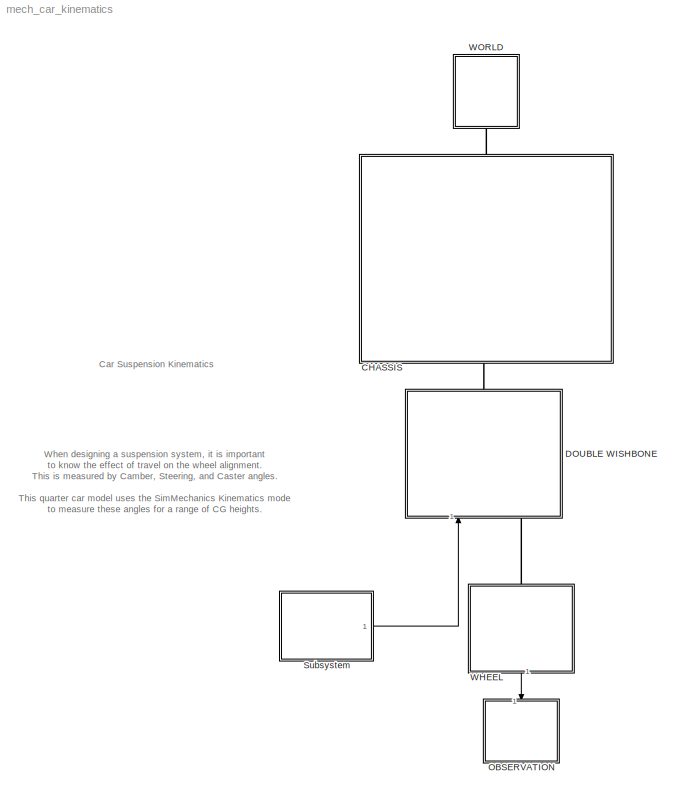
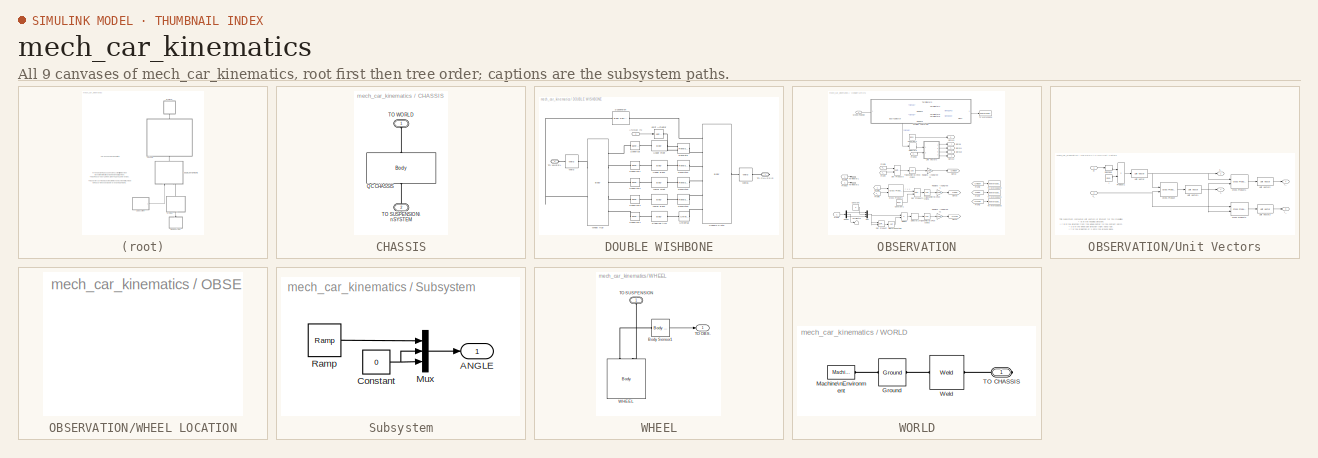
[diagram: thumbnail index - all 9 canvases of the model, root first then tree order]
MODEL mech_car_kinematics
KIND model
CONFIG InitFcn = set_param([gcs '/WORLD/Machine Environment'], 'AnalysisType', 'Kinematics');\n\n\n
CONFIG PreLoadFcn = % Initialize structures \nchassis = struct() ; \nwheelhub = struct() ; \nsuspension = struct() ; \nwheel = struct() ; \n\n% Defualt chassis/double wishbone mounting points \nchassis.mass = 600 ; \nchassis.upperfront = [0 0 0] ; \nchassis.upperback = [-0.4 0 0] ; \nchassis.lowerfront = [0 0 -0.5] ; \nchassis.lowerback = [-0.4 0 -0.45] ; \nchassis.steering = [0.12 0 -0.3] ; \nchassis.suspension = [0...<+453ch>
CONFIG StopFcn = % Script to plot the bump steer properties of a suspension system\n\nappDataName = 'mech_car_Kin_Steering_data';\nfigInfo.pos = [20   288   409   413];\nfigInfo.title = 'Steering angle versus CG height';\nfigInfo.xlabel = 'CG Height (m)';\nfigInfo.ylabel = 'Steering Angle (deg)';\nmech_car_handling_fig_mgr('init',appDataName,figInfo);\nmodelFigure = getappdata(0,appDataName);\nplot(-WHEEL.signals....<+851ch>
BLOCK [SubSystem] CHASSIS
  FunctionWithSeparateData = off
  MaskDisplay = image(imread('chassis.jpg'))
  MaskEnableString = on
  MaskHideContents = off
  MaskIconFrame = on
  MaskIconOpaque = on
  MaskIconRotate = none
  MaskIconUnits = autoscale
  MaskPromptString = Quarter Car Chassis Mass
  MaskStyleString = edit
  MaskToolTipString = on
  MaskTunableValueString = on
  MaskValueString = chassis.mass
  MaskVariables = chassis_mass=@1;
  MaskVisibilityString = on
  MinAlgLoopOccurrences = off
  Opaque = off
  Ports = [0, 0, 0, 0, 0, 1, 1]
  PropExecContextOutsideSubsystem = off
  RTWSystemCode = Auto
  RequestExecContextInheritance = off
BLOCK [Reference] CHASSIS/QC CHASSIS  REF=mblibv1/Bodies/Body
  AttachedToCS = 1
  BodyColor = [0.5 0.5 0.5]
  CG = Left$CG$[0 0 -0.5]$CS1$CS1$m$[0 0 0]$EULER X-Y-Z$deg$WORLD$false
  CGPos = [0 0 -0.5]
  CGRot = [0 0 0]
  CS0Pos = []
  CS0Rot = []
  CS10Pos = []
  CS10Rot = []
  CS11Pos = []
  CS11Rot = []
  CS12Pos = []
  CS12Rot = []
  CS13Pos = []
  CS13Rot = []
  CS14Pos = []
  CS14Rot = []
  CS15Pos = []
  CS15Rot = []
  CS16Pos = []
  CS16Rot = []
  CS17Pos = []
  CS17Rot = []
  CS18Pos = []
  CS18Rot = []
  CS19Pos = []
  CS19Rot = []
  CS1Pos = [0 0 0]
  CS1Rot = [0 0 0]
  CS20Pos = []
  CS20Rot = []
  CS2Pos = [0 0 -1]
  CS2Rot = [0 0 0]
  CS3Pos = []
  CS3Rot = []
  CS4Pos = []
  CS4Rot = []
  CS5Pos = []
  CS5Rot = []
  CS6Pos = []
  CS6Rot = []
  CS7Pos = []
  CS7Rot = []
  CS8Pos = []
  CS8Rot = []
  CS9Pos = []
  CS9Rot = []
  ClassName = Body
  Density = 1
  DensityUnits = kg/m^3
  DensityUse = false
  DialogClass = MechanicalBodyBlock
  DialogController = MECH.DynMechDlgSource
  GraphicsMode = 1
  GraphicsObj = []
  Inertia = diag([1 1 0.008])*10
  InertiaUnits = kg*m^2
  LConnTagsString = CS1
  LeftPortType = workingframe
  Mass = chassis_mass
  MassUnits = kg
  PhysicalDomain = mechanical
  Ports = [0, 0, 0, 0, 0, 1, 1]
  RConnTagsString = CS2
  RightPortType = workingframe
  Shape = Cylinder
  ShapeDims = [1 1]
  ShapeUnits = m
  ShapeUse = false
  SourceBlock = mblibv1/Bodies/Body
  SourceType = Body
  SubClassName = Unknown
  WorkingFrames = Left$CS1$[0 0 0]$ADJOINING$ADJOINING$m$[0 0 0]$EULER X-Y-Z$deg$WORLD$true#Right$CS2$[0 0 -1]$CS1$CS1$m$[0 0 0]$EULER X-Y-Z$deg$WORLD$true
BLOCK [PMIOPort] CHASSIS/TO SUSPENSION\nSYSTEM
  Port = 2
  Side = Right
BLOCK [PMIOPort] CHASSIS/TO WORLD
  Port = 1
  Side = Left
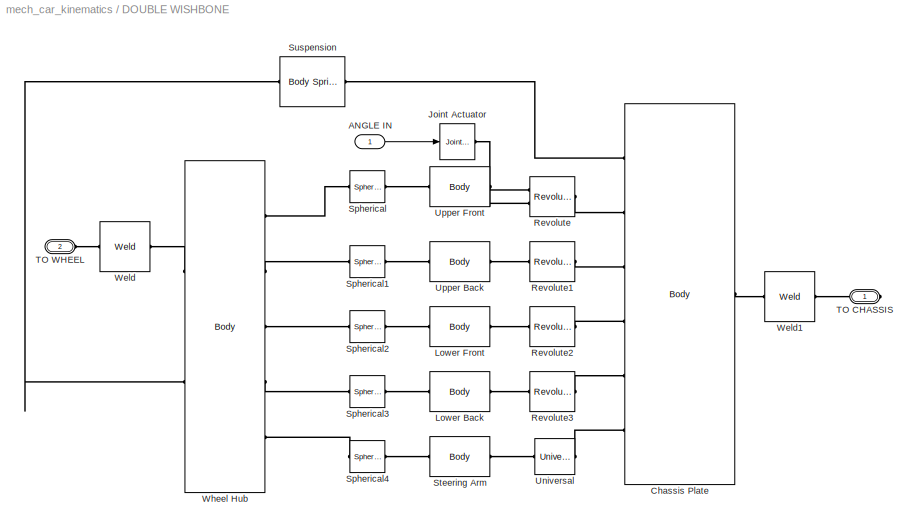
BLOCK [SubSystem] DOUBLE WISHBONE
  FunctionWithSeparateData = off
  MaskCallbackString = ||||||||||||
  MaskDisplay = image(imread('double_wishbone.jpg'))
  MaskEnableString = on,on,on,on,on,on,on,on,on,on,on,on,on
  MaskHideContents = off
  MaskIconFrame = on
  MaskIconOpaque = on
  MaskIconRotate = none
  MaskIconUnits = pixels
  MaskPromptString = Chassis Upper Front Mounting|Chassis Upper Back|Chassis Lower Front|Chassis Lower Back|Chassis Steering Arm|Chassis Suspension|Hub Upper|Hub Lower|Hub Steering Arm|Hub Suspension|Suspension Spring Stiffness|Suspension Spring Natural Length|Suspension Damping Constant
  MaskStyleString = edit,edit,edit,edit,edit,edit,edit,edit,edit,edit,edit,edit,edit
  MaskTabNameString = ,,,,,,,,,,,,
  MaskToolTipString = on,on,on,on,on,on,on,on,on,on,on,on,on
  MaskTunableValueString = on,on,on,on,on,on,on,on,on,on,on,on,on
  MaskValueString = chassis.upperfront|chassis.upperback|chassis.lowerfront|chassis.lowerback|chassis.steering|chassis.suspension|wheelhub.upper|wheelhub.lower|wheelhub.steering|wheelhub.suspension|suspension.ks|suspension.Ls|suspension.bs
  MaskVarAliasString = ,,,,,,,,,,,,
  MaskVariables = Chas_Up_Front=@1;Chas_Up_Back=@2;Chas_Low_Front=@3;Chas_Low_Back=@4;Chas_Steer=@5;Chas_Susp=@6;Hub_Up=@7;Hub_Low=@8;Hub_Steer=@9;Hub_Susp=@10;suspension_ks=@11;suspension_Ls=@12;suspension_bs=@13;
  MaskVisibilityString = on,on,on,on,on,on,on,on,on,on,on,on,on
  MinAlgLoopOccurrences = off
  Opaque = off
  Ports = [1, 0, 0, 0, 0, 1, 1]
  PropExecContextOutsideSubsystem = off
  RTWSystemCode = Auto
  RequestExecContextInheritance = off
BLOCK [Inport] DOUBLE WISHBONE/ANGLE IN
  IconDisplay = Port number
  OutDataType = sfix(16)
  OutScaling = 2^0
BLOCK [Reference] DOUBLE WISHBONE/Chassis Plate  REF=mblibv1/Bodies/Body
  AttachedToCS = 1
  BodyColor = [0.5 0.5 0.5]
  CG = Right$CG$[0 0 0]$CS4$CS4$m$[0 0 0]$EULER X-Y-Z$deg$WORLD$false
  CGPos = [0 0 0]
  CGRot = [0 0 0]
  CS0Pos = []
  CS0Rot = []
  CS10Pos = []
  CS10Rot = []
  CS11Pos = []
  CS11Rot = []
  CS12Pos = []
  CS12Rot = []
  CS13Pos = []
  CS13Rot = []
  CS14Pos = []
  CS14Rot = []
  CS15Pos = []
  CS15Rot = []
  CS16Pos = []
  CS16Rot = []
  CS17Pos = []
  CS17Rot = []
  CS18Pos = []
  CS18Rot = []
  CS19Pos = []
  CS19Rot = []
  CS1Pos = Chas_Susp
  CS1Rot = [0 0 0]
  CS20Pos = []
  CS20Rot = []
  CS2Pos = Chas_Up_Back
  CS2Rot = [0 0 0]
  CS3Pos = Chas_Up_Front
  CS3Rot = [0 0 0]
  CS4Pos = [0 0 0]
  CS4Rot = [0 0 0]
  CS5Pos = Chas_Low_Front
  CS5Rot = [0 0 0]
  CS6Pos = Chas_Low_Back
  CS6Rot = [0 0 0]
  CS7Pos = Chas_Steer
  CS7Rot = [0 0 0]
  CS8Pos = []
  CS8Rot = []
  CS9Pos = []
  CS9Rot = []
  ClassName = Body
  Density = 1
  DensityUnits = kg/m^3
  DensityUse = false
  DialogClass = MechanicalBodyBlock
  DialogController = MECH.DynMechDlgSource
  GraphicsMode = 1
  GraphicsObj = []
  Inertia = [0.5005 0 0;0 1 0;0 0 0.5005]/100
  InertiaUnits = kg*m^2
  LConnTagsString = CS1|CS3|CS2|CS5|CS6|CS7
  LeftPortType = workingframe
  Mass = 0.1
  MassUnits = kg
  PhysicalDomain = mechanical
  Ports = [0, 0, 0, 0, 0, 6, 1]
  RConnTagsString = CS4
  RightPortType = workingframe
  Shape = Cylinder
  ShapeDims = [1 1]
  ShapeUnits = m
  ShapeUse = false
  SourceBlock = mblibv1/Bodies/Body
  SourceType = Body
  SubClassName = Unknown
  WorkingFrames = Right$CS4$[0 0 0]$ADJOINING$ADJOINING$m$[0 0 0]$EULER X-Y-Z$deg$WORLD$true#Left$CS1$Chas_Susp$CS4$CS4$m$[0 0 0]$EULER X-Y-Z$deg$WORLD$true#Left$CS3$Chas_Up_Front$CS4$CS4$m$[0 0 0]$EULER X-Y-Z$deg$WORLD$true#Left$CS2$Chas_Up_Back$CS4$CS4$m$[0 0 0]$EULER X-Y-Z$deg$WORLD$true#Left$CS5$Chas_Low_Front$CS4$CS4$m$[0 0 0]$EULER X-Y-Z$deg$WORLD$true#Left$CS6$Chas_Low_Back$CS4$CS4$m$[0 0 0]$EULER X-Y-Z$deg$...<+75ch>
BLOCK [Reference] DOUBLE WISHBONE/Joint Actuator  REF=mblibv1/Sensors & \nActuators/Joint Actuator
  AccelerationUnits = m/s^2
  ActiveIO = on
  ActuationStyle = Motion
  AngleUnits = rad
  ArcAccelerationUnits = rad/s^2
  ArcVelocityUnits = rad/s
  ClassName = JointActuator
  CoordPositionUnits = m
  DialogClass = MechanicalActuatorBlock
  DialogController = MECH.DynMechDlgSource
  ForceUnits = N
  FunctionWithSeparateData = off
  PhysicalDomain = Mechanical
  PortType = blob
  Ports = [1, 0, 0, 0, 0, 0, 1]
  Primitive = R1
  RTWMemSecDataConstants = Inherit from model
  RTWMemSecDataInternal = Inherit from model
  RTWMemSecDataParameters = Inherit from model
  RTWMemSecFuncExecute = Inherit from model
  RTWMemSecFuncInitTerm = Inherit from model
  ReferenceFrame = Absolute (INERTIAL)
  ShowPortLabels = FromPortIcon
  SourceBlock = mblibv1/Sensors & \nActuators/Joint Actuator
  SourceType = Joint Actuator
  SystemSampleTime = -1
  TorqueUnits = N-m
  VelocityUnits = m/s
  Width = 3
BLOCK [Reference] DOUBLE WISHBONE/Lower Back  REF=mblibv1/Bodies/Body
  AttachedToCS = 1
  BodyColor = [0.5 0.5 0.5]
  CG = Left$CG$0.5*(Hub_Low - Chas_Low_Back)$CS2$CS2$m$[0 0 -110]$EULER X-Y-Z$deg$WORLD$false
  CGPos = 0.5*(Hub_Low - Chas_Low_Back)
  CGRot = [0 0 -110]
  CS0Pos = []
  CS0Rot = []
  CS10Pos = []
  CS10Rot = []
  CS11Pos = []
  CS11Rot = []
  CS12Pos = []
  CS12Rot = []
  CS13Pos = []
  CS13Rot = []
  CS14Pos = []
  CS14Rot = []
  CS15Pos = []
  CS15Rot = []
  CS16Pos = []
  CS16Rot = []
  CS17Pos = []
  CS17Rot = []
  CS18Pos = []
  CS18Rot = []
  CS19Pos = []
  CS19Rot = []
  CS1Pos = Hub_Low - Chas_Low_Back
  CS1Rot = [0 0 0]
  CS20Pos = []
  CS20Rot = []
  CS2Pos = [0 0 0]
  CS2Rot = [0 0 0]
  CS3Pos = []
  CS3Rot = []
  CS4Pos = []
  CS4Rot = []
  CS5Pos = []
  CS5Rot = []
  CS6Pos = []
  CS6Rot = []
  CS7Pos = []
  CS7Rot = []
  CS8Pos = []
  CS8Rot = []
  CS9Pos = []
  CS9Rot = []
  ClassName = Body
  Density = 1
  DensityUnits = kg/m^3
  DensityUse = false
  DialogClass = MechanicalBodyBlock
  DialogController = MECH.DynMechDlgSource
  GraphicsMode = 1
  GraphicsObj = []
  Inertia = diag([0.008 1 1])/7.8
  InertiaUnits = kg*m^2
  LConnTagsString = CS1
  LeftPortType = workingframe
  Mass = 7
  MassUnits = kg
  PhysicalDomain = mechanical
  Ports = [0, 0, 0, 0, 0, 1, 1]
  RConnTagsString = CS2
  RightPortType = workingframe
  Shape = Cylinder
  ShapeDims = [1 1]
  ShapeUnits = m
  ShapeUse = false
  SourceBlock = mblibv1/Bodies/Body
  SourceType = Body
  SubClassName = Unknown
  WorkingFrames = Left$CS1$Hub_Low - Chas_Low_Back$CS2$CS2$m$[0 0 0]$EULER X-Y-Z$deg$WORLD$true#Right$CS2$[0 0 0]$ADJOINING$ADJOINING$m$[0 0 0]$EULER X-Y-Z$deg$WORLD$true
BLOCK [Reference] DOUBLE WISHBONE/Lower Front  REF=mblibv1/Bodies/Body
  AttachedToCS = 1
  BodyColor = [0.5 0.5 0.5]
  CG = Left$CG$0.5*(Hub_Low - Chas_Low_Front)$CS2$CS2$m$[0 0 -70]$EULER X-Y-Z$deg$WORLD$false
  CGPos = 0.5*(Hub_Low - Chas_Low_Front)
  CGRot = [0 0 -70]
  CS0Pos = []
  CS0Rot = []
  CS10Pos = []
  CS10Rot = []
  CS11Pos = []
  CS11Rot = []
  CS12Pos = []
  CS12Rot = []
  CS13Pos = []
  CS13Rot = []
  CS14Pos = []
  CS14Rot = []
  CS15Pos = []
  CS15Rot = []
  CS16Pos = []
  CS16Rot = []
  CS17Pos = []
  CS17Rot = []
  CS18Pos = []
  CS18Rot = []
  CS19Pos = []
  CS19Rot = []
  CS1Pos = Hub_Low - Chas_Low_Front
  CS1Rot = [0 0 0]
  CS20Pos = []
  CS20Rot = []
  CS2Pos = [0 0 0]
  CS2Rot = [0 0 0]
  CS3Pos = []
  CS3Rot = []
  CS4Pos = []
  CS4Rot = []
  CS5Pos = []
  CS5Rot = []
  CS6Pos = []
  CS6Rot = []
  CS7Pos = []
  CS7Rot = []
  CS8Pos = []
  CS8Rot = []
  CS9Pos = []
  CS9Rot = []
  ClassName = Body
  Density = 1
  DensityUnits = kg/m^3
  DensityUse = false
  DialogClass = MechanicalBodyBlock
  DialogController = MECH.DynMechDlgSource
  GraphicsMode = 1
  GraphicsObj = []
  Inertia = diag([0.008 1 1])/7.8
  InertiaUnits = kg*m^2
  LConnTagsString = CS1
  LeftPortType = workingframe
  Mass = 7
  MassUnits = kg
  PhysicalDomain = mechanical
  Ports = [0, 0, 0, 0, 0, 1, 1]
  RConnTagsString = CS2
  RightPortType = workingframe
  Shape = Cylinder
  ShapeDims = [1 1]
  ShapeUnits = m
  ShapeUse = false
  SourceBlock = mblibv1/Bodies/Body
  SourceType = Body
  SubClassName = Unknown
  WorkingFrames = Left$CS1$Hub_Low - Chas_Low_Front$CS2$CS2$m$[0 0 0]$EULER X-Y-Z$deg$WORLD$true#Right$CS2$[0 0 0]$ADJOINING$ADJOINING$m$[0 0 0]$EULER X-Y-Z$deg$WORLD$true
BLOCK [Reference] DOUBLE WISHBONE/Revolute  REF=mblibv1/Joints/Revolute
  ClassName = Joint
  CutJoint = off
  DialogClass = JointBlock
  DialogController = MECH.DynMechDlgSource
  LConnTagsString = __newl0|SA1
  LeftPortType = blob
  MarkAsCut = off
  NumSAPorts = 1
  PhysicalDomain = mechanical
  Ports = [0, 0, 0, 0, 0, 2, 1]
  PrimitiveProps = R1$WORLD$Chas_Up_Front - Chas_Up_Back$revolute
  Primitives = revolute
  R1Axis = Chas_Up_Front - Chas_Up_Back
  RConnTagsString = __newr0
  RightPortType = blob
  SourceBlock = mblibv1/Joints/Revolute
  SourceType = Revolute
  SubClassName = Unknown
BLOCK [Reference] DOUBLE WISHBONE/Revolute1  REF=mblibv1/Joints/Revolute
  ClassName = Joint
  CutJoint = on
  DialogClass = JointBlock
  DialogController = MECH.DynMechDlgSource
  LConnTagsString = __newl0
  LeftPortType = blob
  MarkAsCut = off
  NumSAPorts = 0
  PhysicalDomain = mechanical
  Ports = [0, 0, 0, 0, 0, 1, 1]
  PrimitiveProps = R1$WORLD$Chas_Up_Front - Chas_Up_Back$revolute
  Primitives = revolute
  R1Axis = Chas_Up_Front - Chas_Up_Back
  RConnTagsString = __newr0
  RightPortType = blob
  SourceBlock = mblibv1/Joints/Revolute
  SourceType = Revolute
  SubClassName = Unknown
BLOCK [Reference] DOUBLE WISHBONE/Revolute2  REF=mblibv1/Joints/Revolute
  ClassName = Joint
  CutJoint = off
  DialogClass = JointBlock
  DialogController = MECH.DynMechDlgSource
  LConnTagsString = __newl0
  LeftPortType = blob
  MarkAsCut = off
  NumSAPorts = 0
  PhysicalDomain = mechanical
  Ports = [0, 0, 0, 0, 0, 1, 1]
  PrimitiveProps = R1$WORLD$Chas_Low_Front-Chas_Low_Back$revolute
  Primitives = revolute
  R1Axis = Chas_Low_Front-Chas_Low_Back
  RConnTagsString = __newr0
  RightPortType = blob
  SourceBlock = mblibv1/Joints/Revolute
  SourceType = Revolute
  SubClassName = Unknown
BLOCK [Reference] DOUBLE WISHBONE/Revolute3  REF=mblibv1/Joints/Revolute
  ClassName = Joint
  CutJoint = off
  DialogClass = JointBlock
  DialogController = MECH.DynMechDlgSource
  LConnTagsString = __newl0
  LeftPortType = blob
  MarkAsCut = off
  NumSAPorts = 0
  PhysicalDomain = mechanical
  Ports = [0, 0, 0, 0, 0, 1, 1]
  PrimitiveProps = R1$WORLD$Chas_Low_Front - Chas_Low_Back$revolute
  Primitives = revolute
  R1Axis = Chas_Low_Front - Chas_Low_Back
  RConnTagsString = __newr0
  RightPortType = blob
  SourceBlock = mblibv1/Joints/Revolute
  SourceType = Revolute
  SubClassName = Unknown
BLOCK [Reference] DOUBLE WISHBONE/Spherical  REF=mblibv1/Joints/Spherical
  ClassName = Joint
  CutJoint = off
  DialogClass = JointBlock
  DialogController = MECH.DynMechDlgSource
  LConnTagsString = __newl0
  LeftPortType = blob
  MarkAsCut = off
  NumSAPorts = 0
  PhysicalDomain = mechanical
  Ports = [0, 0, 0, 0, 0, 1, 1]
  PrimitiveProps = S$INERTIAL$[0 0 0]$spherical
  Primitives = spherical
  RConnTagsString = __newr0
  RightPortType = blob
  SAxis = [0 0 0]
  SourceBlock = mblibv1/Joints/Spherical
  SourceType = Spherical
  SubClassName = Unknown
BLOCK [Reference] DOUBLE WISHBONE/Spherical1  REF=mblibv1/Joints/Spherical
  ClassName = Joint
  CutJoint = off
  DialogClass = JointBlock
  DialogController = MECH.DynMechDlgSource
  LConnTagsString = __newl0
  LeftPortType = blob
  MarkAsCut = off
  NumSAPorts = 0
  PhysicalDomain = mechanical
  Ports = [0, 0, 0, 0, 0, 1, 1]
  PrimitiveProps = S$WORLD$[0 0 0]$spherical
  Primitives = spherical
  RConnTagsString = __newr0
  RightPortType = blob
  SAxis = [0 0 0]
  SourceBlock = mblibv1/Joints/Spherical
  SourceType = Spherical
  SubClassName = Unknown
BLOCK [Reference] DOUBLE WISHBONE/Spherical2  REF=mblibv1/Joints/Spherical
  ClassName = Joint
  CutJoint = off
  DialogClass = JointBlock
  DialogController = MECH.DynMechDlgSource
  LConnTagsString = __newl0
  LeftPortType = blob
  MarkAsCut = off
  NumSAPorts = 0
  PhysicalDomain = mechanical
  Ports = [0, 0, 0, 0, 0, 1, 1]
  PrimitiveProps = S$WORLD$[0 0 0]$spherical
  Primitives = spherical
  RConnTagsString = __newr0
  RightPortType = blob
  SAxis = [0 0 0]
  SourceBlock = mblibv1/Joints/Spherical
  SourceType = Spherical
  SubClassName = Unknown
BLOCK [Reference] DOUBLE WISHBONE/Spherical3  REF=mblibv1/Joints/Spherical
  ClassName = Joint
  CutJoint = on
  DialogClass = JointBlock
  DialogController = MECH.DynMechDlgSource
  LConnTagsString = __newl0
  LeftPortType = blob
  MarkAsCut = off
  NumSAPorts = 0
  PhysicalDomain = mechanical
  Ports = [0, 0, 0, 0, 0, 1, 1]
  PrimitiveProps = S$WORLD$[0 0 0]$spherical
  Primitives = spherical
  RConnTagsString = __newr0
  RightPortType = blob
  SAxis = [0 0 0]
  SourceBlock = mblibv1/Joints/Spherical
  SourceType = Spherical
  SubClassName = Unknown
BLOCK [Reference] DOUBLE WISHBONE/Spherical4  REF=mblibv1/Joints/Spherical
  ClassName = Joint
  CutJoint = off
  DialogClass = JointBlock
  DialogController = MECH.DynMechDlgSource
  LConnTagsString = __newl0
  LeftPortType = blob
  MarkAsCut = off
  NumSAPorts = 0
  PhysicalDomain = mechanical
  Ports = [0, 0, 0, 0, 0, 1, 1]
  PrimitiveProps = S$INERTIAL$[0 0 0]$spherical
  Primitives = spherical
  RConnTagsString = __newr0
  RightPortType = blob
  SAxis = [0 0 0]
  SourceBlock = mblibv1/Joints/Spherical
  SourceType = Spherical
  SubClassName = Unknown
BLOCK [Reference] DOUBLE WISHBONE/Steering Arm  REF=mblibv1/Bodies/Body
  AttachedToCS = 1
  BodyColor = [0.5 0.5 0.5]
  CG = Left$CG$0.5*(Hub_Steer - Chas_Steer)$CS2$CS2$m$[0 0 -82]$EULER X-Y-Z$deg$WORLD$false
  CGPos = 0.5*(Hub_Steer - Chas_Steer)
  CGRot = [0 0 -82]
  CS0Pos = []
  CS0Rot = []
  CS10Pos = []
  CS10Rot = []
  CS11Pos = []
  CS11Rot = []
  CS12Pos = []
  CS12Rot = []
  CS13Pos = []
  CS13Rot = []
  CS14Pos = []
  CS14Rot = []
  CS15Pos = []
  CS15Rot = []
  CS16Pos = []
  CS16Rot = []
  CS17Pos = []
  CS17Rot = []
  CS18Pos = []
  CS18Rot = []
  CS19Pos = []
  CS19Rot = []
  CS1Pos = Hub_Steer - Chas_Steer
  CS1Rot = [0 0 0]
  CS20Pos = []
  CS20Rot = []
  CS2Pos = [0 0 0]
  CS2Rot = [0 0 0]
  CS3Pos = []
  CS3Rot = []
  CS4Pos = []
  CS4Rot = []
  CS5Pos = []
  CS5Rot = []
  CS6Pos = []
  CS6Rot = []
  CS7Pos = []
  CS7Rot = []
  CS8Pos = []
  CS8Rot = []
  CS9Pos = []
  CS9Rot = []
  ClassName = Body
  Density = 1
  DensityUnits = kg/m^3
  DensityUse = false
  DialogClass = MechanicalBodyBlock
  DialogController = MECH.DynMechDlgSource
  GraphicsMode = 1
  GraphicsObj = []
  Inertia = diag([0.008 1 1])/10
  InertiaUnits = kg*m^2
  LConnTagsString = CS1
  LeftPortType = workingframe
  Mass = 7
  MassUnits = kg
  PhysicalDomain = mechanical
  Ports = [0, 0, 0, 0, 0, 1, 1]
  RConnTagsString = CS2
  RightPortType = workingframe
  Shape = Cylinder
  ShapeDims = [1 1]
  ShapeUnits = m
  ShapeUse = false
  SourceBlock = mblibv1/Bodies/Body
  SourceType = Body
  SubClassName = Unknown
  WorkingFrames = Left$CS1$Hub_Steer - Chas_Steer$CS2$CS2$m$[0 0 0]$EULER X-Y-Z$deg$WORLD$true#Right$CS2$[0 0 0]$ADJOINING$ADJOINING$m$[0 0 0]$EULER X-Y-Z$deg$WORLD$true
BLOCK [Reference] DOUBLE WISHBONE/Suspension  REF=mblibv1/Force \nElements/Body Spring & Damper
  ClassName = BodyForceElement
  Damper_b = suspension_bs
  DialogClass = BodySpringDamper
  DialogController = MECH.DynMechDlgSource
  ForceUnits = N
  FunctionWithSeparateData = off
  Offset_x0 = suspension_Ls
  Ports = [0, 0, 0, 0, 0, 1, 1]
  PositionUnits = m
  RTWMemSecDataConstants = Inherit from model
  RTWMemSecDataInternal = Inherit from model
  RTWMemSecDataParameters = Inherit from model
  RTWMemSecFuncExecute = Inherit from model
  RTWMemSecFuncInitTerm = Inherit from model
  ShowPortLabels = FromPortIcon
  SourceBlock = mblibv1/Force \nElements/Body Spring & Damper
  SourceType = Body Spring & Damper
  Spring_k = suspension_ks
  SystemSampleTime = -1
  VelocityUnits = m/s
BLOCK [PMIOPort] DOUBLE WISHBONE/TO CHASSIS
  Port = 1
  Side = Right
BLOCK [PMIOPort] DOUBLE WISHBONE/TO WHEEL
  Port = 2
  Side = Left
BLOCK [Reference] DOUBLE WISHBONE/Universal  REF=mblibv1/Joints/Universal
  ClassName = Joint
  CutJoint = off
  DialogClass = JointBlock
  DialogController = MECH.DynMechDlgSource
  LConnTagsString = __newl0
  LeftPortType = blob
  MarkAsCut = off
  NumSAPorts = 0
  PhysicalDomain = mechanical
  Ports = [0, 0, 0, 0, 0, 1, 1]
  PrimitiveProps = R1$WORLD$[1 0 0]$revolute#R2$WORLD$[0 0 1]$revolute
  Primitives = revolute_revolute
  R1Axis = [1 0 0]
  R2Axis = [0 0 1]
  RConnTagsString = __newr0
  RightPortType = blob
  SourceBlock = mblibv1/Joints/Universal
  SourceType = Universal
  SubClassName = Unknown
BLOCK [Reference] DOUBLE WISHBONE/Upper Back  REF=mblibv1/Bodies/Body
  AttachedToCS = 1
  BodyColor = [0.5 0.5 0.5]
  CG = Left$CG$0.5*(Hub_Up - Chas_Up_Back)$CS2$CS2$m$[0 0 -110]$EULER X-Y-Z$deg$WORLD$false
  CGPos = 0.5*(Hub_Up - Chas_Up_Back)
  CGRot = [0 0 -110]
  CS0Pos = []
  CS0Rot = []
  CS10Pos = []
  CS10Rot = []
  CS11Pos = []
  CS11Rot = []
  CS12Pos = []
  CS12Rot = []
  CS13Pos = []
  CS13Rot = []
  CS14Pos = []
  CS14Rot = []
  CS15Pos = []
  CS15Rot = []
  CS16Pos = []
  CS16Rot = []
  CS17Pos = []
  CS17Rot = []
  CS18Pos = []
  CS18Rot = []
  CS19Pos = []
  CS19Rot = []
  CS1Pos = (Hub_Up - Chas_Up_Back)
  CS1Rot = [0 0 0]
  CS20Pos = []
  CS20Rot = []
  CS2Pos = [0 0 0]
  CS2Rot = [0 0 0]
  CS3Pos = []
  CS3Rot = []
  CS4Pos = []
  CS4Rot = []
  CS5Pos = []
  CS5Rot = []
  CS6Pos = []
  CS6Rot = []
  CS7Pos = []
  CS7Rot = []
  CS8Pos = []
  CS8Rot = []
  CS9Pos = []
  CS9Rot = []
  ClassName = Body
  Density = 1
  DensityUnits = kg/m^3
  DensityUse = false
  DialogClass = MechanicalBodyBlock
  DialogController = MECH.DynMechDlgSource
  GraphicsMode = 1
  GraphicsObj = []
  Inertia = diag([0.008 1 1])/7.8
  InertiaUnits = kg*m^2
  LConnTagsString = CS1
  LeftPortType = workingframe
  Mass = 7
  MassUnits = kg
  PhysicalDomain = mechanical
  Ports = [0, 0, 0, 0, 0, 1, 1]
  RConnTagsString = CS2
  RightPortType = workingframe
  Shape = Cylinder
  ShapeDims = [1 1]
  ShapeUnits = m
  ShapeUse = false
  SourceBlock = mblibv1/Bodies/Body
  SourceType = Body
  SubClassName = Unknown
  WorkingFrames = Left$CS1$(Hub_Up - Chas_Up_Back)$CS2$CS2$m$[0 0 0]$EULER X-Y-Z$deg$WORLD$true#Right$CS2$[0 0 0]$ADJOINING$ADJOINING$m$[0 0 0]$EULER X-Y-Z$deg$WORLD$true
BLOCK [Reference] DOUBLE WISHBONE/Upper Front  REF=mblibv1/Bodies/Body
  AttachedToCS = 1
  BodyColor = [0.5 0.5 0.5]
  CG = Left$CG$[-0.1 0.25 0]$CS2$CS2$m$[0 0 -70]$EULER X-Y-Z$deg$WORLD$false
  CGPos = [-0.1 0.25 0]
  CGRot = [0 0 -70]
  CS0Pos = []
  CS0Rot = []
  CS10Pos = []
  CS10Rot = []
  CS11Pos = []
  CS11Rot = []
  CS12Pos = []
  CS12Rot = []
  CS13Pos = []
  CS13Rot = []
  CS14Pos = []
  CS14Rot = []
  CS15Pos = []
  CS15Rot = []
  CS16Pos = []
  CS16Rot = []
  CS17Pos = []
  CS17Rot = []
  CS18Pos = []
  CS18Rot = []
  CS19Pos = []
  CS19Rot = []
  CS1Pos = Hub_Up - Chas_Up_Front
  CS1Rot = [0 0 0]
  CS20Pos = []
  CS20Rot = []
  CS2Pos = [0 0 0]
  CS2Rot = [0 0 0]
  CS3Pos = []
  CS3Rot = []
  CS4Pos = []
  CS4Rot = []
  CS5Pos = []
  CS5Rot = []
  CS6Pos = []
  CS6Rot = []
  CS7Pos = []
  CS7Rot = []
  CS8Pos = []
  CS8Rot = []
  CS9Pos = []
  CS9Rot = []
  ClassName = Body
  Density = 1
  DensityUnits = kg/m^3
  DensityUse = false
  DialogClass = MechanicalBodyBlock
  DialogController = MECH.DynMechDlgSource
  GraphicsMode = 1
  GraphicsObj = []
  Inertia = diag([0.008 1 1])/7.8
  InertiaUnits = kg*m^2
  LConnTagsString = CS1
  LeftPortType = workingframe
  Mass = 7
  MassUnits = kg
  PhysicalDomain = mechanical
  Ports = [0, 0, 0, 0, 0, 1, 1]
  RConnTagsString = CS2
  RightPortType = workingframe
  Shape = Cylinder
  ShapeDims = [1 1]
  ShapeUnits = m
  ShapeUse = false
  SourceBlock = mblibv1/Bodies/Body
  SourceType = Body
  SubClassName = Unknown
  WorkingFrames = Left$CS1$Hub_Up - Chas_Up_Front$CS2$CS2$m$[0 0 0]$EULER X-Y-Z$deg$WORLD$true#Right$CS2$[0 0 0]$ADJOINING$ADJOINING$m$[0 0 0]$EULER X-Y-Z$deg$WORLD$true
BLOCK [Reference] DOUBLE WISHBONE/Weld  REF=mblibv1/Joints/Weld
  ClassName = Joint
  CutJoint = off
  DialogClass = JointBlock
  DialogController = MECH.DynMechDlgSource
  LConnTagsString = __newl0
  LeftPortType = blob
  MarkAsCut = off
  NumSAPorts = 0
  PhysicalDomain = mechanical
  Ports = [0, 0, 0, 0, 0, 1, 1]
  PrimitiveProps = W$INERTIAL$[0 0 0]$weld
  Primitives = weld
  RConnTagsString = __newr0
  RightPortType = blob
  SourceBlock = mblibv1/Joints/Weld
  SourceType = Weld
  SubClassName = Unknown
  WAxis = [0 0 0]
BLOCK [Reference] DOUBLE WISHBONE/Weld1  REF=mblibv1/Joints/Weld
  ClassName = Joint
  CutJoint = off
  DialogClass = JointBlock
  DialogController = MECH.DynMechDlgSource
  LConnTagsString = __newl0
  LeftPortType = blob
  MarkAsCut = off
  NumSAPorts = 0
  PhysicalDomain = mechanical
  Ports = [0, 0, 0, 0, 0, 1, 1]
  PrimitiveProps = W$INERTIAL$[0 0 0]$weld
  Primitives = weld
  RConnTagsString = __newr0
  RightPortType = blob
  SourceBlock = mblibv1/Joints/Weld
  SourceType = Weld
  SubClassName = Unknown
  WAxis = [0 0 0]
BLOCK [Reference] DOUBLE WISHBONE/Wheel Hub  REF=mblibv1/Bodies/Body
  AttachedToCS = 1
  BodyColor = [0.5 0.5 0.5]
  CG = Left$CG$[0 0.03 -0.2]$CS3$CS3$m$[0 0 0]$EULER X-Y-Z$deg$WORLD$false
  CGPos = [0 0.03 -0.2]
  CGRot = [0 0 0]
  CS0Pos = []
  CS0Rot = []
  CS10Pos = []
  CS10Rot = []
  CS11Pos = []
  CS11Rot = []
  CS12Pos = []
  CS12Rot = []
  CS13Pos = []
  CS13Rot = []
  CS14Pos = []
  CS14Rot = []
  CS15Pos = []
  CS15Rot = []
  CS16Pos = []
  CS16Rot = []
  CS17Pos = []
  CS17Rot = []
  CS18Pos = []
  CS18Rot = []
  CS19Pos = []
  CS19Rot = []
  CS1Pos = [0 0.1 -0.2]
  CS1Rot = [0 0 0]
  CS20Pos = []
  CS20Rot = []
  CS2Pos = Hub_Susp - [0 0 1]
  CS2Rot = [0 0 0]
  CS3Pos = Hub_Up - [0 0 1]
  CS3Rot = [0 0 0]
  CS4Pos = Hub_Low - [0 0 1]
  CS4Rot = [0 0 0]
  CS5Pos = Hub_Low - [0 0 1]
  CS5Rot = [0 0 0]
  CS6Pos = Hub_Up - [0 0 1]
  CS6Rot = [0 0 0]
  CS7Pos = Hub_Steer - [0 0 1]
  CS7Rot = [0 0 0]
  CS8Pos = []
  CS8Rot = []
  CS9Pos = []
  CS9Rot = []
  ClassName = Body
  Density = 1
  DensityUnits = kg/m^3
  DensityUse = false
  DialogClass = MechanicalBodyBlock
  DialogController = MECH.DynMechDlgSource
  GraphicsMode = 1
  GraphicsObj = []
  Inertia = [0.55 0 0;0 1 0;0 0 0.55]/12
  InertiaUnits = kg*m^2
  LConnTagsString = CS1|CS2
  LeftPortType = workingframe
  Mass = 5
  MassUnits = kg
  PhysicalDomain = mechanical
  Ports = [0, 0, 0, 0, 0, 2, 5]
  RConnTagsString = CS3|CS6|CS4|CS5|CS7
  RightPortType = workingframe
  Shape = Cylinder
  ShapeDims = [1 1]
  ShapeUnits = m
  ShapeUse = false
  SourceBlock = mblibv1/Bodies/Body
  SourceType = Body
  SubClassName = Unknown
  WorkingFrames = Left$CS1$[0 0.1 -0.2]$CS3$CS3$m$[0 0 0]$EULER X-Y-Z$deg$WORLD$true#Right$CS3$Hub_Up - [0 0 1]$WORLD$WORLD$m$[0 0 0]$EULER X-Y-Z$deg$WORLD$true#Right$CS6$Hub_Up - [0 0 1]$WORLD$WORLD$m$[0 0 0]$EULER X-Y-Z$deg$WORLD$true#Left$CS2$Hub_Susp - [0 0 1]$WORLD$WORLD$m$[0 0 0]$EULER X-Y-Z$deg$WORLD$true#Right$CS4$Hub_Low - [0 0 1]$WORLD$WORLD$m$[0 0 0]$EULER X-Y-Z$deg$WORLD$true#Right$CS5$Hub_Low - [0 0 1]...<+128ch>
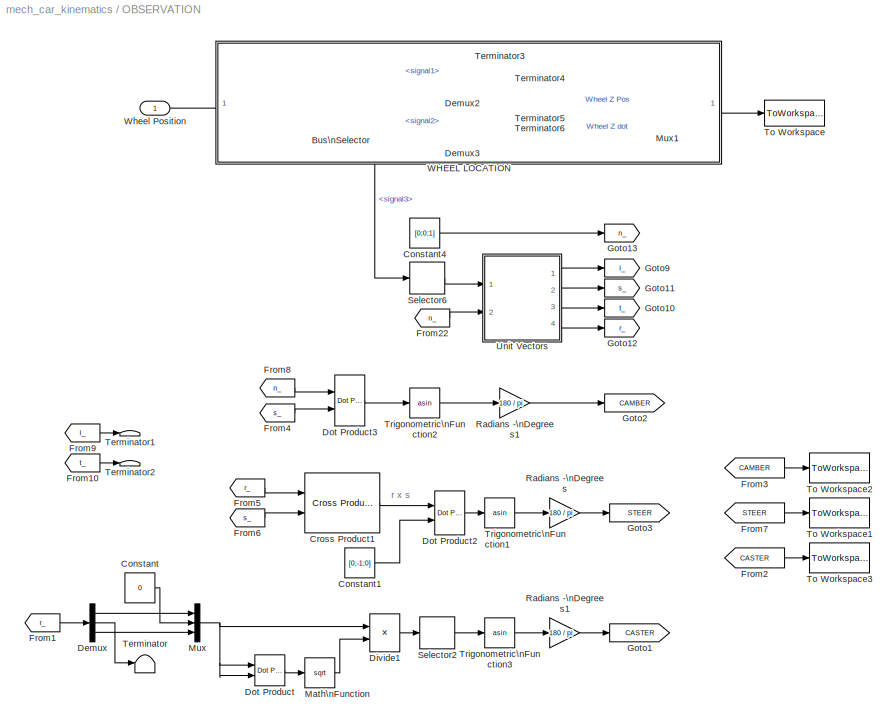
BLOCK [SubSystem] OBSERVATION
  FunctionWithSeparateData = off
  MaskDisplay = image(imread('view.jpg'))
  MaskHideContents = off
  MaskIconFrame = on
  MaskIconOpaque = on
  MaskIconRotate = none
  MaskIconUnits = autoscale
  MinAlgLoopOccurrences = off
  Opaque = off
  Ports = [1]
  PropExecContextOutsideSubsystem = off
  RTWSystemCode = Auto
  RequestExecContextInheritance = off
BLOCK [BusSelector] OBSERVATION/Bus\nSelector
  OutputSignals = signal1,signal2,signal3
  Ports = [1, 3]
BLOCK [Constant] OBSERVATION/Constant
  OutDataType = sfix(16)
  OutScaling = 2^0
  Value = 0
BLOCK [Constant] OBSERVATION/Constant1
  OutDataType = sfix(16)
  OutScaling = 2^0
  Value = [0;-1;0]
BLOCK [Constant] OBSERVATION/Constant4
  OutDataType = sfix(16)
  OutScaling = 2^0
  Value = [0;0;1]
BLOCK [Reference] OBSERVATION/Cross Product1  REF=mech_car_library/Utilities/Cross Product  (lib defined in mdl_d18b56878ff5)
  FunctionWithSeparateData = off
  Ports = [2, 1]
  RTWMemSecDataConstants = Inherit from model
  RTWMemSecDataInternal = Inherit from model
  RTWMemSecDataParameters = Inherit from model
  RTWMemSecFuncExecute = Inherit from model
  RTWMemSecFuncInitTerm = Inherit from model
  ShowPortLabels = FromPortIcon
  SourceBlock = mech_car_library/Utilities/Cross Product
  SourceType = Cross Product
  SystemSampleTime = -1
BLOCK [Demux] OBSERVATION/Demux
  DisplayOption = bar
  Outputs = 3
  Ports = [1, 3]
BLOCK [Demux] OBSERVATION/Demux2
  DisplayOption = bar
  Outputs = 3
  Ports = [1, 3]
BLOCK [Demux] OBSERVATION/Demux3
  DisplayOption = bar
  Outputs = 3
  Ports = [1, 3]
BLOCK [Product] OBSERVATION/Divide1
  InputSameDT = off
  Inputs = */
  OutDataType = sfix(16)
  OutDataTypeMode = Inherit via internal rule
  OutDataTypeStr = Inherit: Inherit via internal rule
  OutScaling = 2^-10
  Ports = [2, 1]
  RndMeth = Floor
  SaturateOnIntegerOverflow = off
BLOCK [Reference] OBSERVATION/Dot Product  REF=simulink/Math\nOperations/Dot Product
  DoSatur = off
  InputSameDT = on
  LockScale = off
  OutDataType = sfix(16)
  OutDataTypeStr = Inherit: Inherit via internal rule
  OutScaling = 2^-10
  OutputDataTypeScalingMode = Inherit via internal rule
  Ports = [2, 1]
  RndMeth = Floor
  SourceBlock = simulink/Math\nOperations/Dot Product
  SourceType = Dot Product
BLOCK [Reference] OBSERVATION/Dot Product2  REF=simulink/Math\nOperations/Dot Product
  DoSatur = off
  InputSameDT = on
  LockScale = off
  OutDataType = sfix(16)
  OutDataTypeStr = Inherit: Inherit via internal rule
  OutScaling = 2^-10
  OutputDataTypeScalingMode = Inherit via internal rule
  Ports = [2, 1]
  RndMeth = Floor
  SourceBlock = simulink/Math\nOperations/Dot Product
  SourceType = Dot Product
BLOCK [Reference] OBSERVATION/Dot Product3  REF=simulink/Math\nOperations/Dot Product
  DoSatur = off
  InputSameDT = on
  LockScale = off
  OutDataType = sfix(16)
  OutDataTypeStr = Inherit: Inherit via internal rule
  OutScaling = 2^-10
  OutputDataTypeScalingMode = Inherit via internal rule
  Ports = [2, 1]
  RndMeth = Floor
  SourceBlock = simulink/Math\nOperations/Dot Product
  SourceType = Dot Product
BLOCK [From] OBSERVATION/From1
  CloseFcn = tagdialog Close
  GotoTag = r_
BLOCK [From] OBSERVATION/From10
  CloseFcn = tagdialog Close
  GotoTag = t_
BLOCK [From] OBSERVATION/From2
  CloseFcn = tagdialog Close
  GotoTag = CASTER
BLOCK [From] OBSERVATION/From22
  CloseFcn = tagdialog Close
  GotoTag = n_
BLOCK [From] OBSERVATION/From3
  CloseFcn = tagdialog Close
  GotoTag = CAMBER
BLOCK [From] OBSERVATION/From4
  CloseFcn = tagdialog Close
  GotoTag = s_
BLOCK [From] OBSERVATION/From5
  CloseFcn = tagdialog Close
  GotoTag = r_
BLOCK [From] OBSERVATION/From6
  CloseFcn = tagdialog Close
  GotoTag = s_
BLOCK [From] OBSERVATION/From7
  CloseFcn = tagdialog Close
  GotoTag = STEER
BLOCK [From] OBSERVATION/From8
  CloseFcn = tagdialog Close
  GotoTag = n_
BLOCK [From] OBSERVATION/From9
  CloseFcn = tagdialog Close
  GotoTag = l_
BLOCK [Goto] OBSERVATION/Goto1
  GotoTag = CASTER
  TagVisibility = local
BLOCK [Goto] OBSERVATION/Goto10
  GotoTag = t_
  TagVisibility = local
BLOCK [Goto] OBSERVATION/Goto11
  GotoTag = s_
  TagVisibility = local
BLOCK [Goto] OBSERVATION/Goto12
  GotoTag = r_
  TagVisibility = local
BLOCK [Goto] OBSERVATION/Goto13
  GotoTag = n_
  TagVisibility = local
BLOCK [Goto] OBSERVATION/Goto2
  GotoTag = CAMBER
  TagVisibility = local
BLOCK [Goto] OBSERVATION/Goto3
  GotoTag = STEER
  TagVisibility = local
BLOCK [Goto] OBSERVATION/Goto9
  GotoTag = l_
  TagVisibility = local
BLOCK [Math] OBSERVATION/Math\nFunction
  Operator = sqrt
  OutDataType = sfix(16)
  OutScaling = 2^0
  Ports = [1, 1]
BLOCK [Mux] OBSERVATION/Mux
  DisplayOption = bar
  Inputs = 3
  Ports = [3, 1]
BLOCK [Mux] OBSERVATION/Mux1
  DisplayOption = bar
  Inputs = 2
  Ports = [2, 1]
BLOCK [Gain] OBSERVATION/Radians  -\nDegrees
  Gain = 180 / pi
  OutDataType = sfix(16)
  OutDataTypeMode = Inherit via internal rule
  OutDataTypeStr = Inherit: Inherit via internal rule
  OutScaling = 2^0
  ParamDataTypeStr = Inherit: Inherit via internal rule
  ParameterDataType = sfix(16)
  ParameterDataTypeMode = Inherit via internal rule
  ParameterScaling = 2^0
  SaturateOnIntegerOverflow = off
BLOCK [Gain] OBSERVATION/Radians  -\nDegrees1
  Gain = 180 / pi
  OutDataType = sfix(16)
  OutDataTypeMode = Inherit via internal rule
  OutDataTypeStr = Inherit: Inherit via internal rule
  OutScaling = 2^0
  ParamDataTypeStr = Inherit: Inherit via internal rule
  ParameterDataType = sfix(16)
  ParameterDataTypeMode = Inherit via internal rule
  ParameterScaling = 2^0
  SaturateOnIntegerOverflow = off
BLOCK [Gain] OBSERVATION/Radians -\nDegrees1
  Gain = 180 / pi
  OutDataType = sfix(16)
  OutDataTypeMode = Inherit via internal rule
  OutDataTypeStr = Inherit: Inherit via internal rule
  OutScaling = 2^0
  ParamDataTypeStr = Inherit: Inherit via internal rule
  ParameterDataType = sfix(16)
  ParameterDataTypeMode = Inherit via internal rule
  ParameterScaling = 2^0
  SaturateOnIntegerOverflow = off
BLOCK [Selector] OBSERVATION/Selector2
  IndexOptions = Index vector (dialog)
  Indices = 1
  InputPortWidth = 3
  OutputSizes = 1
  Ports = [1, 1]
BLOCK [Selector] OBSERVATION/Selector6
  IndexOptions = Index vector (dialog)
  Indices = 1:9
  InputPortWidth = 9
  OutputSizes = 1
  Ports = [1, 1]
BLOCK [Terminator] OBSERVATION/Terminator
BLOCK [Terminator] OBSERVATION/Terminator1
BLOCK [Terminator] OBSERVATION/Terminator2
BLOCK [Terminator] OBSERVATION/Terminator3
BLOCK [Terminator] OBSERVATION/Terminator4
BLOCK [Terminator] OBSERVATION/Terminator5
BLOCK [Terminator] OBSERVATION/Terminator6
BLOCK [ToWorkspace] OBSERVATION/To Workspace
  MaxDataPoints = inf
  SampleTime = -1
  SaveFormat = Structure
  VariableName = WHEEL
BLOCK [ToWorkspace] OBSERVATION/To Workspace1
  MaxDataPoints = inf
  SampleTime = -1
  SaveFormat = Structure
  VariableName = STEER
BLOCK [ToWorkspace] OBSERVATION/To Workspace2
  MaxDataPoints = inf
  SampleTime = -1
  SaveFormat = Structure
  VariableName = CAMBER
BLOCK [ToWorkspace] OBSERVATION/To Workspace3
  MaxDataPoints = inf
  SampleTime = -1
  SaveFormat = Structure
  VariableName = CASTER
BLOCK [Trigonometry] OBSERVATION/Trigonometric\nFunction1
  Operator = asin
  Ports = [1, 1]
BLOCK [Trigonometry] OBSERVATION/Trigonometric\nFunction2
  Operator = asin
  Ports = [1, 1]
BLOCK [Trigonometry] OBSERVATION/Trigonometric\nFunction3
  Operator = asin
  Ports = [1, 1]
BLOCK [SubSystem] OBSERVATION/Unit Vectors
  FunctionWithSeparateData = off
  MaskHideContents = off
  MinAlgLoopOccurrences = off
  Opaque = off
  Ports = [2, 4]
  PropExecContextOutsideSubsystem = off
  RTWSystemCode = Auto
  RequestExecContextInheritance = off
BLOCK [Reference] OBSERVATION/Unit Vectors/Cross Product  REF=mech_car_library/Utilities/Cross Product  (lib defined in mdl_d18b56878ff5)
  FunctionWithSeparateData = off
  Ports = [2, 1]
  RTWMemSecDataConstants = Inherit from model
  RTWMemSecDataInternal = Inherit from model
  RTWMemSecDataParameters = Inherit from model
  RTWMemSecFuncExecute = Inherit from model
  RTWMemSecFuncInitTerm = Inherit from model
  ShowPortLabels = FromPortIcon
  SourceBlock = mech_car_library/Utilities/Cross Product
  SourceType = Cross Product
  SystemSampleTime = -1
BLOCK [Reference] OBSERVATION/Unit Vectors/Cross Product1  REF=mech_car_library/Utilities/Cross Product  (lib defined in mdl_d18b56878ff5)
  FunctionWithSeparateData = off
  Ports = [2, 1]
  RTWMemSecDataConstants = Inherit from model
  RTWMemSecDataInternal = Inherit from model
  RTWMemSecDataParameters = Inherit from model
  RTWMemSecFuncExecute = Inherit from model
  RTWMemSecFuncInitTerm = Inherit from model
  ShowPortLabels = FromPortIcon
  SourceBlock = mech_car_library/Utilities/Cross Product
  SourceType = Cross Product
  SystemSampleTime = -1
BLOCK [Reference] OBSERVATION/Unit Vectors/Cross Product2  REF=mech_car_library/Utilities/Cross Product  (lib defined in mdl_d18b56878ff5)
  FunctionWithSeparateData = off
  Ports = [2, 1]
  RTWMemSecDataConstants = Inherit from model
  RTWMemSecDataInternal = Inherit from model
  RTWMemSecDataParameters = Inherit from model
  RTWMemSecFuncExecute = Inherit from model
  RTWMemSecFuncInitTerm = Inherit from model
  ShowPortLabels = FromPortIcon
  SourceBlock = mech_car_library/Utilities/Cross Product
  SourceType = Cross Product
  SystemSampleTime = -1
BLOCK [Product] OBSERVATION/Unit Vectors/Product1
  InputSameDT = off
  Multiplication = Matrix(*)
  OutDataType = sfix(16)
  OutDataTypeMode = Inherit via internal rule
  OutDataTypeStr = Inherit: Inherit via internal rule
  OutScaling = 2^0
  Ports = [2, 1]
  SaturateOnIntegerOverflow = off
BLOCK [Inport] OBSERVATION/Unit Vectors/R
  IconDisplay = Port number
  OutDataType = sfix(16)
  OutScaling = 2^0
BLOCK [Reshape] OBSERVATION/Unit Vectors/Reshape
  OutputDimensionality = Customize
  OutputDimensions = [3,3]
BLOCK [Reference] OBSERVATION/Unit Vectors/Unit Vector  REF=mech_car_library/Utilities/Unit Vector  (lib defined in mdl_d18b56878ff5)
  FunctionWithSeparateData = off
  Ports = [1, 1]
  RTWMemSecDataConstants = Inherit from model
  RTWMemSecDataInternal = Inherit from model
  RTWMemSecDataParameters = Inherit from model
  RTWMemSecFuncExecute = Inherit from model
  RTWMemSecFuncInitTerm = Inherit from model
  ShowPortLabels = FromPortIcon
  SourceBlock = mech_car_library/Utilities/Unit Vector
  SourceType = Unit Vector
  SystemSampleTime = -1
BLOCK [Reference] OBSERVATION/Unit Vectors/Unit Vector1  REF=mech_car_library/Utilities/Unit Vector  (lib defined in mdl_d18b56878ff5)
  FunctionWithSeparateData = off
  Ports = [1, 1]
  RTWMemSecDataConstants = Inherit from model
  RTWMemSecDataInternal = Inherit from model
  RTWMemSecDataParameters = Inherit from model
  RTWMemSecFuncExecute = Inherit from model
  RTWMemSecFuncInitTerm = Inherit from model
  ShowPortLabels = FromPortIcon
  SourceBlock = mech_car_library/Utilities/Unit Vector
  SourceType = Unit Vector
  SystemSampleTime = -1
BLOCK [Reference] OBSERVATION/Unit Vectors/Unit Vector2  REF=mech_car_library/Utilities/Unit Vector  (lib defined in mdl_d18b56878ff5)
  FunctionWithSeparateData = off
  Ports = [1, 1]
  RTWMemSecDataConstants = Inherit from model
  RTWMemSecDataInternal = Inherit from model
  RTWMemSecDataParameters = Inherit from model
  RTWMemSecFuncExecute = Inherit from model
  RTWMemSecFuncInitTerm = Inherit from model
  ShowPortLabels = FromPortIcon
  SourceBlock = mech_car_library/Utilities/Unit Vector
  SourceType = Unit Vector
  SystemSampleTime = -1
BLOCK [Reference] OBSERVATION/Unit Vectors/Unit Vector3  REF=mech_car_library/Utilities/Unit Vector  (lib defined in mdl_d18b56878ff5)
  FunctionWithSeparateData = off
  Ports = [1, 1]
  RTWMemSecDataConstants = Inherit from model
  RTWMemSecDataInternal = Inherit from model
  RTWMemSecDataParameters = Inherit from model
  RTWMemSecFuncExecute = Inherit from model
  RTWMemSecFuncInitTerm = Inherit from model
  ShowPortLabels = FromPortIcon
  SourceBlock = mech_car_library/Utilities/Unit Vector
  SourceType = Unit Vector
  SystemSampleTime = -1
BLOCK [Constant] OBSERVATION/Unit Vectors/j
  OutDataType = sfix(16)
  OutScaling = 2^0
  Value = [0;1;0]
BLOCK [Outport] OBSERVATION/Unit Vectors/l_
  IconDisplay = Port number
  OutDataType = sfix(16)
  OutScaling = 2^0
BLOCK [Inport] OBSERVATION/Unit Vectors/n_
  IconDisplay = Port number
  OutDataType = sfix(16)
  OutScaling = 2^0
  Port = 2
BLOCK [Outport] OBSERVATION/Unit Vectors/r_
  IconDisplay = Port number
  OutDataType = sfix(16)
  OutScaling = 2^0
  Port = 4
BLOCK [Outport] OBSERVATION/Unit Vectors/s_
  IconDisplay = Port number
  OutDataType = sfix(16)
  OutScaling = 2^0
  Port = 2
BLOCK [Outport] OBSERVATION/Unit Vectors/t_
  IconDisplay = Port number
  OutDataType = sfix(16)
  OutScaling = 2^0
  Port = 3
BLOCK [SubSystem] OBSERVATION/WHEEL LOCATION
  FunctionWithSeparateData = off
  MaskDisplay = disp('')
  MaskHideContents = off
  MaskIconFrame = on
  MaskIconOpaque = on
  MaskIconRotate = none
  MaskIconUnits = autoscale
  MinAlgLoopOccurrences = off
  Opaque = off
  Ports = []
  PropExecContextOutsideSubsystem = off
  RTWSystemCode = Auto
  RequestExecContextInheritance = off
BLOCK [Inport] OBSERVATION/Wheel Position
  IconDisplay = Port number
  OutDataType = sfix(16)
  OutScaling = 2^0
BLOCK [SubSystem] Subsystem
  FunctionWithSeparateData = off
  MaskDisplay = image(imread('spanner.jpg'))
  MaskHideContents = off
  MaskIconFrame = on
  MaskIconOpaque = on
  MaskIconRotate = none
  MaskIconUnits = autoscale
  MinAlgLoopOccurrences = off
  Opaque = off
  Ports = [0, 1]
  PropExecContextOutsideSubsystem = off
  RTWSystemCode = Auto
  RequestExecContextInheritance = off
BLOCK [Outport] Subsystem/ANGLE
  IconDisplay = Port number
  OutDataType = sfix(16)
  OutScaling = 2^0
BLOCK [Constant] Subsystem/Constant
  OutDataType = sfix(16)
  OutScaling = 2^0
  Value = 0
BLOCK [Mux] Subsystem/Mux
  DisplayOption = bar
  Inputs = 3
  Ports = [3, 1]
BLOCK [Reference] Subsystem/Ramp  REF=simulink/Sources/Ramp
  FunctionWithSeparateData = off
  Ports = [0, 1]
  RTWMemSecDataConstants = Inherit from model
  RTWMemSecDataInternal = Inherit from model
  RTWMemSecDataParameters = Inherit from model
  RTWMemSecFuncExecute = Inherit from model
  RTWMemSecFuncInitTerm = Inherit from model
  ShowPortLabels = FromPortIcon
  SourceBlock = simulink/Sources/Ramp
  SourceType = Ramp
  SystemSampleTime = -1
  VectorParams1D = on
  X0 = -0.5
  slope = 0.1
  start = 0
BLOCK [SubSystem] WHEEL
  FunctionWithSeparateData = off
  MaskCallbackString = ||
  MaskDisplay = image(imread('wheel.jpg'))
  MaskEnableString = on,on,on
  MaskHideContents = off
  MaskIconFrame = on
  MaskIconOpaque = on
  MaskIconRotate = none
  MaskIconUnits = autoscale
  MaskPromptString = Wheel Mass|Wheel Radius|Wheel Inertia
  MaskStyleString = edit,edit,edit
  MaskTabNameString = ,,
  MaskToolTipString = on,on,on
  MaskTunableValueString = on,on,on
  MaskValueString = wheel.mass|wheel.radius|wheel.inertia
  MaskVarAliasString = ,,
  MaskVariables = wheel_mass=@1;wheel_radius=@2;wheel_inertia=@3;
  MaskVisibilityString = on,on,on
  MinAlgLoopOccurrences = off
  Opaque = off
  Ports = [0, 1, 0, 0, 0, 1]
  PropExecContextOutsideSubsystem = off
  RTWSystemCode = Auto
  RequestExecContextInheritance = off
BLOCK [Reference] WHEEL/Body Sensor1  REF=mblibv1/Sensors & \nActuators/Body Sensor
  Acceleration = off
  AccelerationUnits = m/s^2
  ActiveIO = on
  Angle = on
  AngleUnits = deg
  ArcAcceleration = off
  ArcAccelerationUnits = deg/s^2
  ArcVelocity = off
  ArcVelocityUnits = deg/s
  ClassName = BodySensor
  CoordPosition = on
  CoordPositionUnits = m
  DialogClass = MechanicalSensorBlock
  DialogController = MECH.DynMechDlgSource
  FunctionWithSeparateData = off
  Muxed = on
  OutputVector = [ 3 3 9 ]
  PhysicalDomain = Mechanical
  PortType = blob
  Ports = [0, 1, 0, 0, 0, 1]
  Pose = on
  Quaternion = on
  QuaternionDDT = off
  QuaternionDT = off
  QuaternionUnits = off
  RTWMemSecDataConstants = Inherit from model
  RTWMemSecDataInternal = Inherit from model
  RTWMemSecDataParameters = Inherit from model
  RTWMemSecFuncExecute = Inherit from model
  RTWMemSecFuncInitTerm = Inherit from model
  ReferenceFrame = Absolute (World)
  ShowPortLabels = FromPortIcon
  SourceBlock = mblibv1/Sensors & \nActuators/Body Sensor
  SourceType = Body Sensor
  SystemSampleTime = -1
  Velocity = on
  VelocityUnits = m/s
  Width = 15
BLOCK [Outport] WHEEL/TO OBS.
  IconDisplay = Port number
  OutDataType = sfix(16)
  OutScaling = 2^0
BLOCK [PMIOPort] WHEEL/TO SUSPENSION
  Port = 1
  Side = Left
BLOCK [Reference] WHEEL/WHEEL  REF=mblibv1/Bodies/Body
  AttachedToCS = 1
  BodyColor = [0.5 0.5 0.5]
  CG = Left$CG$[0 0 0]$CS1$CS1$m$[0 0 0]$EULER X-Y-Z$deg$WORLD$true
  CGPos = [0 0 0]
  CGRot = [0 0 0]
  CS0Pos = []
  CS0Rot = []
  CS10Pos = []
  CS10Rot = []
  CS11Pos = []
  CS11Rot = []
  CS12Pos = []
  CS12Rot = []
  CS13Pos = []
  CS13Rot = []
  CS14Pos = []
  CS14Rot = []
  CS15Pos = []
  CS15Rot = []
  CS16Pos = []
  CS16Rot = []
  CS17Pos = []
  CS17Rot = []
  CS18Pos = []
  CS18Rot = []
  CS19Pos = []
  CS19Rot = []
  CS1Pos = [0 0 0]
  CS1Rot = [0 0 0]
  CS20Pos = []
  CS20Rot = []
  CS2Pos = [0 0 -wheel_radius]
  CS2Rot = [0 0 0]
  CS3Pos = [wheel_radius 0 0]
  CS3Rot = [0 0 0]
  CS4Pos = -[wheel_radius 0 0]
  CS4Rot = [0 0 0]
  CS5Pos = []
  CS5Rot = []
  CS6Pos = []
  CS6Rot = []
  CS7Pos = []
  CS7Rot = []
  CS8Pos = []
  CS8Rot = []
  CS9Pos = []
  CS9Rot = []
  ClassName = Body
  Density = 1
  DensityUnits = kg/m^3
  DensityUse = false
  DialogClass = MechanicalBodyBlock
  DialogController = MECH.DynMechDlgSource
  GraphicsMode = 1
  GraphicsObj = []
  Inertia = wheel_inertia
  InertiaUnits = kg*m^2
  LConnTagsString = CG|CS1
  LeftPortType = workingframe
  Mass = wheel_mass
  MassUnits = kg
  PhysicalDomain = mechanical
  Ports = [0, 0, 0, 0, 0, 2]
  RightPortType = workingframe
  Shape = Cylinder
  ShapeDims = [1 1]
  ShapeUnits = m
  ShapeUse = false
  SourceBlock = mblibv1/Bodies/Body
  SourceType = Body
  SubClassName = Unknown
  WorkingFrames = Left$CS1$[0 0 0]$ADJOINING$ADJOINING$m$[0 0 0]$EULER X-Y-Z$deg$WORLD$true#Right$CS2$[0 0 -wheel_radius]$CS1$CS1$m$[0 0 0]$EULER X-Y-Z$deg$WORLD$false#Right$CS3$[wheel_radius 0 0]$CS1$CS1$m$[0 0 0]$EULER X-Y-Z$deg$WORLD$false#Right$CS4$-[wheel_radius 0 0]$CS1$CS1$m$[0 0 0]$EULER X-Y-Z$deg$WORLD$false
BLOCK [SubSystem] WORLD
  FunctionWithSeparateData = off
  MaskDisplay = image(imread('sky.jpg'))
  MaskHideContents = off
  MaskIconFrame = on
  MaskIconOpaque = on
  MaskIconRotate = none
  MaskIconUnits = autoscale
  MinAlgLoopOccurrences = off
  Opaque = off
  Ports = [0, 0, 0, 0, 0, 0, 1]
  PropExecContextOutsideSubsystem = off
  RTWSystemCode = Auto
  RequestExecContextInheritance = off
BLOCK [Reference] WORLD/Ground  REF=mblibv1/Bodies/Ground
  ClassName = Ground
  CoordPosition = [0 0 0]
  CoordPositionUnits = m
  DialogClass = GroundBlock
  DialogController = MECH.DynMechDlgSource
  FunctionWithSeparateData = off
  LeftPortType = env
  MachineId = [0 0]
  PhysicalDomain = Mechanical
  Ports = [0, 0, 0, 0, 0, 1, 1]
  RTWMemSecDataConstants = Inherit from model
  RTWMemSecDataInternal = Inherit from model
  RTWMemSecDataParameters = Inherit from model
  RTWMemSecFuncExecute = Inherit from model
  RTWMemSecFuncInitTerm = Inherit from model
  RightPortType = workingframe
  ShowEnvPort = on
  ShowPortLabels = FromPortIcon
  SourceBlock = mblibv1/Bodies/Ground
  SourceType = Ground
  StateVectorMgrId = -1
  SystemSampleTime = -1
  UserData = DataTag0
  UserDataPersistent = on
BLOCK [Reference] WORLD/Machine\nEnvironment  REF=mblibv1/Bodies/Machine\nEnvironment
  AnalysisType = Kinematics
  AngularAssemblyTolerance = 1e-3
  AngularAssemblyToleranceUnits = rad
  ClassName = Environment
  ConstraintAbsTolerance = 1e-4
  ConstraintRelTolerance = 1e-4
  ConstraintSolverType = Machine precision
  DialogController = MECH.DialogSource
  DialogTemplateClass = MECH.MachineEnvironment
  Dimensionality = Auto-detect
  FunctionWithSeparateData = off
  Gravity = [0 0 -9.81]
  GravityAsSignal = off
  GravityUnits = m/s^2
  LinearAssemblyTolerance = 1e-3
  LinearAssemblyToleranceUnits = m
  PerturbationSize = 1e-5
  PhysicalDomain = Mechanical
  PortType = env
  Ports = [0, 0, 0, 0, 0, 0, 1]
  RTWMemSecDataConstants = Inherit from model
  RTWMemSecDataInternal = Inherit from model
  RTWMemSecDataParameters = Inherit from model
  RTWMemSecFuncExecute = Inherit from model
  RTWMemSecFuncInitTerm = Inherit from model
  RedundancyAnalysisTolerance = 1e-14
  RedundancyAnalysisToleranceType = Automatically select tolerance
  ShowPortLabels = FromPortIcon
  SourceBlock = mblibv1/Bodies/Machine\nEnvironment
  SourceType = Machine Environment
  StatePerturbationType = Fixed
  SyncWhenCopied = off
  SystemSampleTime = -1
  Tag = Factory ground
  UseRobustSingularityHandling = off
  VisualizeMachine = on
BLOCK [PMIOPort] WORLD/TO CHASSIS
  Port = 1
  Side = Right
BLOCK [Reference] WORLD/Weld  REF=mblibv1/Joints/Weld
  ClassName = Joint
  CutJoint = off
  DialogClass = JointBlock
  DialogController = MECH.DynMechDlgSource
  LConnTagsString = __newl0
  LeftPortType = blob
  MarkAsCut = off
  NumSAPorts = 0
  PhysicalDomain = mechanical
  Ports = [0, 0, 0, 0, 0, 1, 1]
  PrimitiveProps = W$INERTIAL$[0 0 0]$weld
  Primitives = weld
  RConnTagsString = __newr0
  RightPortType = blob
  SourceBlock = mblibv1/Joints/Weld
  SourceType = Weld
  SubClassName = Unknown
  WAxis = [0 0 0]
ANNOTATION (root): When designing a suspension system, it is important\nto know the effect of travel on the wheel alignment.\nThis is measured by Camber, Steering, and Caster angles.\n\nThis quarter car model uses the SimMechanics Kinematics mode\nto measure these angles for a range of CG heights.\n \nThe Car parameters are defined in the PreLoad function of the model.
ANNOTATION (root): Car Suspension Kinematics
ANNOTATION OBSERVATION: r x s
ANNOTATION OBSERVATION/Unit Vectors: This subsystem computes unit vectors of interest for tire modelling.\n* l is in the heading direction.\n* r is in the direction from the wheel center to the contact patch.\n* s is in the wheel spin direction (right hand rule).\n* t is the projection of s onto the ground plane.
LINE DOUBLE WISHBONE/ANGLE IN:1 -> DOUBLE WISHBONE/Joint Actuator:1
LINE OBSERVATION/Bus\nSelector:1 -> OBSERVATION/Demux2:1
LINE OBSERVATION/Bus\nSelector:2 -> OBSERVATION/Demux3:1
LINE OBSERVATION/Bus\nSelector:3 -> OBSERVATION/Selector6:1
LINE OBSERVATION/Constant1:1 -> OBSERVATION/Dot Product2:2
LINE OBSERVATION/Constant4:1 -> OBSERVATION/Goto13:1
LINE OBSERVATION/Constant:1 -> OBSERVATION/Mux:2
LINE OBSERVATION/Cross Product1:1 -> OBSERVATION/Dot Product2:1
LINE OBSERVATION/Demux2:1 -> OBSERVATION/Terminator3:1
LINE OBSERVATION/Demux2:2 -> OBSERVATION/Terminator4:1
LINE OBSERVATION/Demux2:3 -> OBSERVATION/Mux1:1
LINE OBSERVATION/Demux3:1 -> OBSERVATION/Terminator5:1
LINE OBSERVATION/Demux3:2 -> OBSERVATION/Terminator6:1
LINE OBSERVATION/Demux3:3 -> OBSERVATION/Mux1:2
LINE OBSERVATION/Demux:1 -> OBSERVATION/Mux:1
LINE OBSERVATION/Demux:2 -> OBSERVATION/Terminator:1
LINE OBSERVATION/Demux:3 -> OBSERVATION/Mux:3
LINE OBSERVATION/Divide1:1 -> OBSERVATION/Selector2:1
LINE OBSERVATION/Dot Product2:1 -> OBSERVATION/Trigonometric\nFunction1:1
LINE OBSERVATION/Dot Product3:1 -> OBSERVATION/Trigonometric\nFunction2:1
LINE OBSERVATION/Dot Product:1 -> OBSERVATION/Math\nFunction:1
LINE OBSERVATION/From10:1 -> OBSERVATION/Terminator2:1
LINE OBSERVATION/From1:1 -> OBSERVATION/Demux:1
LINE OBSERVATION/From22:1 -> OBSERVATION/Unit Vectors:2
LINE OBSERVATION/From2:1 -> OBSERVATION/To Workspace3:1
LINE OBSERVATION/From3:1 -> OBSERVATION/To Workspace2:1
LINE OBSERVATION/From4:1 -> OBSERVATION/Dot Product3:2
LINE OBSERVATION/From5:1 -> OBSERVATION/Cross Product1:1
LINE OBSERVATION/From6:1 -> OBSERVATION/Cross Product1:2
LINE OBSERVATION/From7:1 -> OBSERVATION/To Workspace1:1
LINE OBSERVATION/From8:1 -> OBSERVATION/Dot Product3:1
LINE OBSERVATION/From9:1 -> OBSERVATION/Terminator1:1
LINE OBSERVATION/Math\nFunction:1 -> OBSERVATION/Divide1:2
LINE OBSERVATION/Mux1:1 -> OBSERVATION/To Workspace:1
NET OBSERVATION/Mux:1 -> OBSERVATION/Divide1:1, OBSERVATION/Dot Product:1, OBSERVATION/Dot Product:2
LINE OBSERVATION/Radians  -\nDegrees1:1 -> OBSERVATION/Goto1:1
LINE OBSERVATION/Radians  -\nDegrees:1 -> OBSERVATION/Goto3:1
LINE OBSERVATION/Radians -\nDegrees1:1 -> OBSERVATION/Goto2:1
LINE OBSERVATION/Selector2:1 -> OBSERVATION/Trigonometric\nFunction3:1
LINE OBSERVATION/Selector6:1 -> OBSERVATION/Unit Vectors:1
LINE OBSERVATION/Trigonometric\nFunction1:1 -> OBSERVATION/Radians  -\nDegrees:1
LINE OBSERVATION/Trigonometric\nFunction2:1 -> OBSERVATION/Radians -\nDegrees1:1
LINE OBSERVATION/Trigonometric\nFunction3:1 -> OBSERVATION/Radians  -\nDegrees1:1
LINE OBSERVATION/Unit Vectors/Cross Product1:1 -> OBSERVATION/Unit Vectors/Unit Vector2:1
LINE OBSERVATION/Unit Vectors/Cross Product2:1 -> OBSERVATION/Unit Vectors/Unit Vector3:1
LINE OBSERVATION/Unit Vectors/Cross Product:1 -> OBSERVATION/Unit Vectors/Unit Vector1:1
LINE OBSERVATION/Unit Vectors/Product1:1 -> OBSERVATION/Unit Vectors/Unit Vector:1
LINE OBSERVATION/Unit Vectors/R:1 -> OBSERVATION/Unit Vectors/Reshape:1
LINE OBSERVATION/Unit Vectors/Reshape:1 -> OBSERVATION/Unit Vectors/Product1:1
NET OBSERVATION/Unit Vectors/Unit Vector1:1 -> OBSERVATION/Unit Vectors/Cross Product1:2, OBSERVATION/Unit Vectors/Cross Product2:2, OBSERVATION/Unit Vectors/l_:1
LINE OBSERVATION/Unit Vectors/Unit Vector2:1 -> OBSERVATION/Unit Vectors/r_:1
LINE OBSERVATION/Unit Vectors/Unit Vector3:1 -> OBSERVATION/Unit Vectors/t_:1
NET OBSERVATION/Unit Vectors/Unit Vector:1 -> OBSERVATION/Unit Vectors/Cross Product1:1, OBSERVATION/Unit Vectors/Cross Product:1, OBSERVATION/Unit Vectors/s_:1
LINE OBSERVATION/Unit Vectors/j:1 -> OBSERVATION/Unit Vectors/Product1:2
NET OBSERVATION/Unit Vectors/n_:1 -> OBSERVATION/Unit Vectors/Cross Product2:1, OBSERVATION/Unit Vectors/Cross Product:2
LINE OBSERVATION/Unit Vectors:1 -> OBSERVATION/Goto9:1
LINE OBSERVATION/Unit Vectors:2 -> OBSERVATION/Goto11:1
LINE OBSERVATION/Unit Vectors:3 -> OBSERVATION/Goto10:1
LINE OBSERVATION/Unit Vectors:4 -> OBSERVATION/Goto12:1
LINE OBSERVATION/Wheel Position:1 -> OBSERVATION/Bus\nSelector:1
NET Subsystem/Constant:1 -> Subsystem/Mux:2, Subsystem/Mux:3
LINE Subsystem/Mux:1 -> Subsystem/ANGLE:1
LINE Subsystem/Ramp:1 -> Subsystem/Mux:1
LINE Subsystem:1 -> DOUBLE WISHBONE:1
LINE WHEEL/Body Sensor1:1 -> WHEEL/TO OBS.:1
LINE WHEEL:1 -> OBSERVATION:1
PLINE CHASSIS/QC CHASSIS:LConn1 -- CHASSIS/TO WORLD:RConn1
PLINE CHASSIS/QC CHASSIS:RConn1 -- CHASSIS/TO SUSPENSION\nSYSTEM:RConn1
PLINE CHASSIS:LConn1 -- WORLD:RConn1
PLINE CHASSIS:RConn1 -- DOUBLE WISHBONE:RConn1
PLINE DOUBLE WISHBONE/Chassis Plate:LConn1 -- DOUBLE WISHBONE/Suspension:RConn1
PLINE DOUBLE WISHBONE/Chassis Plate:LConn2 -- DOUBLE WISHBONE/Revolute:RConn1
PLINE DOUBLE WISHBONE/Chassis Plate:LConn3 -- DOUBLE WISHBONE/Revolute1:RConn1
PLINE DOUBLE WISHBONE/Chassis Plate:LConn4 -- DOUBLE WISHBONE/Revolute2:RConn1
PLINE DOUBLE WISHBONE/Chassis Plate:LConn5 -- DOUBLE WISHBONE/Revolute3:RConn1
PLINE DOUBLE WISHBONE/Chassis Plate:LConn6 -- DOUBLE WISHBONE/Universal:RConn1
PLINE DOUBLE WISHBONE/Chassis Plate:RConn1 -- DOUBLE WISHBONE/Weld1:LConn1
PLINE DOUBLE WISHBONE/Joint Actuator:RConn1 -- DOUBLE WISHBONE/Revolute:LConn2
PLINE DOUBLE WISHBONE/Lower Back:LConn1 -- DOUBLE WISHBONE/Spherical3:RConn1
PLINE DOUBLE WISHBONE/Lower Back:RConn1 -- DOUBLE WISHBONE/Revolute3:LConn1
PLINE DOUBLE WISHBONE/Lower Front:LConn1 -- DOUBLE WISHBONE/Spherical2:RConn1
PLINE DOUBLE WISHBONE/Lower Front:RConn1 -- DOUBLE WISHBONE/Revolute2:LConn1
PLINE DOUBLE WISHBONE/Revolute1:LConn1 -- DOUBLE WISHBONE/Upper Back:RConn1
PLINE DOUBLE WISHBONE/Revolute:LConn1 -- DOUBLE WISHBONE/Upper Front:RConn1
PLINE DOUBLE WISHBONE/Spherical1:LConn1 -- DOUBLE WISHBONE/Wheel Hub:RConn2
PLINE DOUBLE WISHBONE/Spherical1:RConn1 -- DOUBLE WISHBONE/Upper Back:LConn1
PLINE DOUBLE WISHBONE/Spherical2:LConn1 -- DOUBLE WISHBONE/Wheel Hub:RConn3
PLINE DOUBLE WISHBONE/Spherical3:LConn1 -- DOUBLE WISHBONE/Wheel Hub:RConn4
PLINE DOUBLE WISHBONE/Spherical4:LConn1 -- DOUBLE WISHBONE/Wheel Hub:RConn5
PLINE DOUBLE WISHBONE/Spherical4:RConn1 -- DOUBLE WISHBONE/Steering Arm:LConn1
PLINE DOUBLE WISHBONE/Spherical:LConn1 -- DOUBLE WISHBONE/Wheel Hub:RConn1
PLINE DOUBLE WISHBONE/Spherical:RConn1 -- DOUBLE WISHBONE/Upper Front:LConn1
PLINE DOUBLE WISHBONE/Steering Arm:RConn1 -- DOUBLE WISHBONE/Universal:LConn1
PLINE DOUBLE WISHBONE/Suspension:LConn1 -- DOUBLE WISHBONE/Wheel Hub:LConn2
PLINE DOUBLE WISHBONE/TO CHASSIS:RConn1 -- DOUBLE WISHBONE/Weld1:RConn1
PLINE DOUBLE WISHBONE/TO WHEEL:RConn1 -- DOUBLE WISHBONE/Weld:LConn1
PLINE DOUBLE WISHBONE/Weld:RConn1 -- DOUBLE WISHBONE/Wheel Hub:LConn1
PLINE DOUBLE WISHBONE:LConn1 -- WHEEL:LConn1
PLINE WHEEL/Body Sensor1:LConn1 -- WHEEL/WHEEL:LConn1
PLINE WHEEL/TO SUSPENSION:RConn1 -- WHEEL/WHEEL:LConn2
PLINE WORLD/Ground:LConn1 -- WORLD/Machine\nEnvironment:RConn1
PLINE WORLD/Ground:RConn1 -- WORLD/Weld:LConn1
PLINE WORLD/TO CHASSIS:RConn1 -- WORLD/Weld:RConn1
note: NET lines group one-source signal fan-out (src -> all destinations, sorted); 1:1 wires keep LINE
